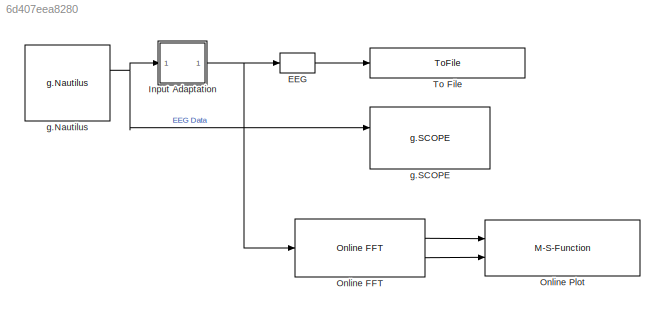
MODEL slx_6d407eea8280
KIND model
CONFIG AbsTol = auto
CONFIG EnableMultiTasking = on
CONFIG FixedStep = 1/500
CONFIG MaxStep = auto
CONFIG MinStep = auto
CONFIG RelTol = 1e-3
CONFIG SampleTimeConstraint = Unconstrained
CONFIG Solver = FixedStepDiscrete
CONFIG SolverName = FixedStepDiscrete
CONFIG StartTime = 0.0
CONFIG StopFcn = AutoStartBatchData=load('session1.mat');AutoStartBatchData=AutoStartBatchData.y;run('AEP_P300_Evaluation')
CONFIG StopTime = inf
WORKSPACE source: MAT-file member
WORKSPACE cfg_native: struct (value not decoded)
WORKSPACE host_port = 50223
WORKSPACE local_ip = 2130706433
BLOCK [Selector] EEG
  IndexOptions = Index vector (dialog)
  Indices = [1:32]
  InputPortWidth = 32
  OutputSizes = 1
  Ports = [1, 1]
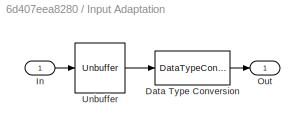
BLOCK [SubSystem] Input Adaptation
  Ports = [1, 1]
  RequestExecContextInheritance = off
  Variant = off
BLOCK [DataTypeConversion] Input Adaptation/Data Type Conversion
  RndMeth = Floor
  SaturateOnIntegerOverflow = off
BLOCK [Inport] Input Adaptation/In
  IconDisplay = Port number
  OutDataTypeStr = single
BLOCK [Outport] Input Adaptation/Out
  IconDisplay = Port number
BLOCK [Unbuffer] Input Adaptation/Unbuffer
  Ports = [1, 1]
BLOCK [Reference] Online FFT  REF=gtecHighspeedLib/Online FFT
  Ports = [1, 2]
  SourceBlock = gtecHighspeedLib/Online FFT
  SourceProductName = g.tec Highspeed Library
  SourceType = FFT
BLOCK [M-S-Function] Online Plot
  AncestorBlock = gtecHighspeedLib185/Online Plot
  FunctionName = Plot_online
  OpenFcn = OpenAveragePlot(gcbh);
  Parameters = channels,xaxis,yaxis,pretrigger,evenodd,twocolmode,x_label
  Ports = [2]
BLOCK [ToFile] To File
  Filename = sub_ES_ch_Hz_
  MatrixName = y
  Ports = [1]
BLOCK [Reference] g.Nautilus  REF=gNautilusLib/g.Nautilus
  Description = Operates a g.Nautilus device and provides acquired data on its outputs.
  Ports = [0, 2]
  SourceBlock = gNautilusLib/g.Nautilus
  SourceProductName = g.Nautilus
  SourceType = g.Nautilus
  Tag = g.Nautilus
BLOCK [Reference] g.SCOPE  REF=gtecHighspeedLib/g.SCOPE
  Ports = [2]
  SourceBlock = gtecHighspeedLib/g.SCOPE
  SourceProductName = g.tec Highspeed Library
  SourceType = g.SCOPE
  UserDataPersistent = on
LINE EEG:1 -> To File:1
LINE Input Adaptation/Data Type Conversion:1 -> Input Adaptation/Out:1
LINE Input Adaptation/In:1 -> Input Adaptation/Unbuffer:1
LINE Input Adaptation/Unbuffer:1 -> Input Adaptation/Data Type Conversion:1
NET Input Adaptation:1 -> EEG:1, Online FFT:1
LINE Online FFT:1 -> Online Plot:1
LINE Online FFT:2 -> Online Plot:2
NET g.Nautilus:1 -> Input Adaptation:1, g.SCOPE:1
note: NET lines group one-source signal fan-out (src -> all destinations, sorted); 1:1 wires keep LINE
